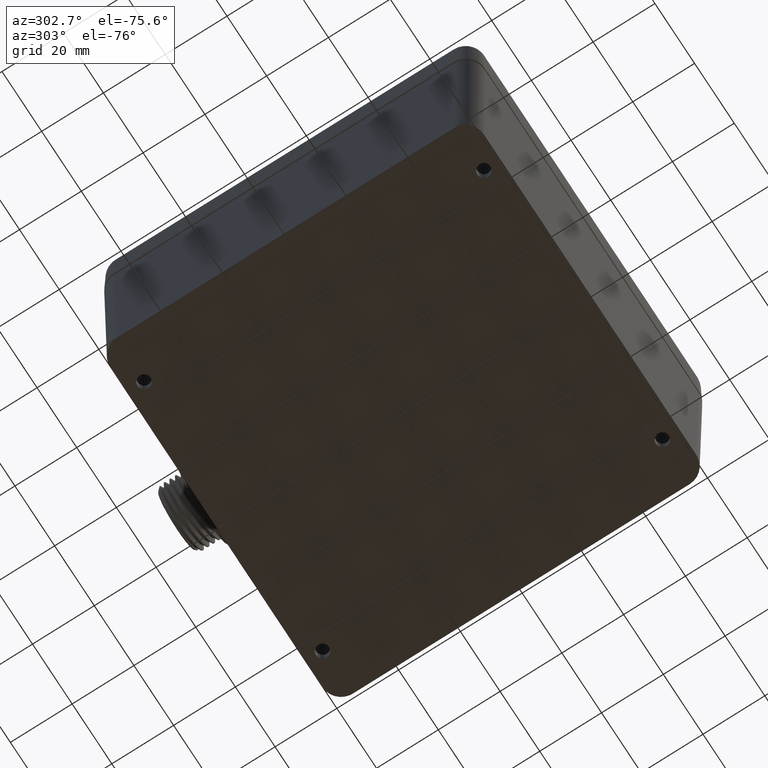
[diagram: clean part render]
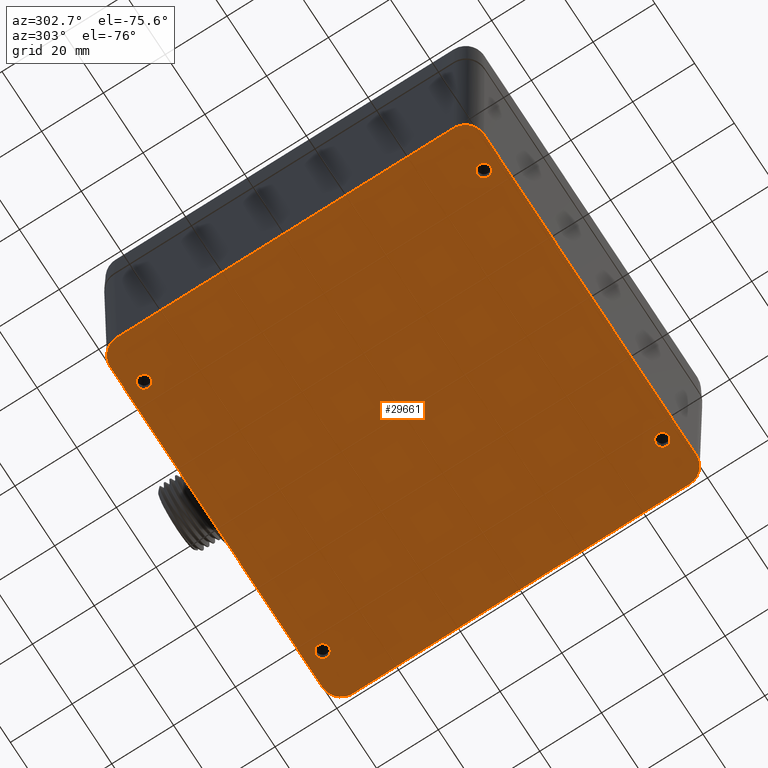
[diagram: same view with one face highlighted and labeled with its STEP entity id]
A machine part, auxiliary view. The second image highlights one B-rep face of the part: STEP entity #29661.
In plain terms, the highlighted planar face has unit normal (0, 0, -1).
Its self-contained STEP definition (entity closure, byte-faithful):
#89 = CARTESIAN_POINT ( 'NONE',  ( 2.244628115040389282, 2.381727401485860263, -2.755905511811025388 ) ) ;
#114 = VERTEX_POINT ( 'NONE', #23620 ) ;
#1186 = CARTESIAN_POINT ( 'NONE',  ( -1.771653543307086576, 2.165354330708661568, -2.755905511811024056 ) ) ;
#1575 = EDGE_CURVE ( 'NONE', #114, #29436, #20281, .T. ) ;
#1839 = CARTESIAN_POINT ( 'NONE',  ( 2.811023622047244430, 2.381889752701787710, -2.755905511811024056 ) ) ;
#1961 = ORIENTED_EDGE ( 'NONE', *, *, #12073, .T. ) ;
#2213 = EDGE_LOOP ( 'NONE', ( #30985, #3242 ) ) ;
#2221 = CARTESIAN_POINT ( 'NONE',  ( 2.106739049942594644, -2.381889744218858240, -2.755905507442043323 ) ) ;
#2564 = CARTESIAN_POINT ( 'NONE',  ( 1.771653543307086576, 2.165354330708661568, -2.755905511811024056 ) ) ;
#2827 = EDGE_CURVE ( 'NONE', #13024, #13173, #5347, .T. ) ;
#3126 = VECTOR ( 'NONE', #15001, 39.37007874015748143 ) ;
#3242 = ORIENTED_EDGE ( 'NONE', *, *, #22719, .T. ) ;
#3288 = FACE_OUTER_BOUND ( 'NONE', #11136, .T. ) ;
#4211 = AXIS2_PLACEMENT_3D ( 'NONE', #19865, #16716, #30051 ) ;
#4554 = CARTESIAN_POINT ( 'NONE',  ( -2.106613251068440995, -2.381889662517161277, -2.755905512564232662 ) ) ;
#4603 = VERTEX_POINT ( 'NONE', #22484 ) ;
#5296 = CARTESIAN_POINT ( 'NONE',  ( 1.771653543307086576, -2.165354330708661568, -2.755905511811024056 ) ) ;
#5318 = AXIS2_PLACEMENT_3D ( 'NONE', #16790, #22036, #14516 ) ;
#5347 =( BOUNDED_CURVE ( )  B_SPLINE_CURVE ( 3, ( #28700, #10462, #10124, #2221 ),
 .UNSPECIFIED., .F., .F. ) 
 B_SPLINE_CURVE_WITH_KNOTS ( ( 4, 4 ),
 ( 2.357396101010214906, 3.925128889959304868 ),
 .UNSPECIFIED. ) 
 CURVE ( )  GEOMETRIC_REPRESENTATION_ITEM ( )  RATIONAL_B_SPLINE_CURVE ( ( 1.000000000000000000, 0.8054593836051719968, 0.8054593836051719968, 1.000000000000000000 ) ) 
 REPRESENTATION_ITEM ( '' )  );
#5377 = DIRECTION ( 'NONE',  ( 1.000000000000000000, 0.000000000000000000, 0.000000000000000000 ) ) ;
#5472 = EDGE_LOOP ( 'NONE', ( #15294, #1961 ) ) ;
#5704 = ORIENTED_EDGE ( 'NONE', *, *, #15645, .T. ) ;
#6787 = DIRECTION ( 'NONE',  ( 0.000000000000000000, 1.000000000000000000, 0.000000000000000000 ) ) ;
#7111 = DIRECTION ( 'NONE',  ( 0.000000000000000000, 0.000000000000000000, 1.000000000000000000 ) ) ;
#7178 = EDGE_CURVE ( 'NONE', #27330, #7643, #7545, .T. ) ;
#7215 = EDGE_LOOP ( 'NONE', ( #24478, #21468 ) ) ;
#7263 = ORIENTED_EDGE ( 'NONE', *, *, #14630, .T. ) ;
#7348 = AXIS2_PLACEMENT_3D ( 'NONE', #27071, #21300, #32158 ) ;
#7409 = CARTESIAN_POINT ( 'NONE',  ( 2.342519685039369914, 2.858267716534342640, -2.755905511811024056 ) ) ;
#7545 = CIRCLE ( 'NONE', #4211, 0.08267716535432079183 ) ;
#7643 = VERTEX_POINT ( 'NONE', #12117 ) ;
#7801 =( BOUNDED_CURVE ( )  B_SPLINE_CURVE ( 3, ( #8501, #89, #29191, #23943 ),
 .UNSPECIFIED., .F., .T. ) 
 B_SPLINE_CURVE_WITH_KNOTS ( ( 4, 4 ),
 ( 5.498988754597079698, 7.066745401790790027 ),
 .UNSPECIFIED. ) 
 CURVE ( )  GEOMETRIC_REPRESENTATION_ITEM ( )  RATIONAL_B_SPLINE_CURVE ( ( 1.000000000000000000, 0.8054537687498010134, 0.8054537687498010134, 1.000000000000000000 ) ) 
 REPRESENTATION_ITEM ( '' )  );
#8074 = CARTESIAN_POINT ( 'NONE',  ( -2.244822846285226881, -2.381709509815444381, -2.755905511811024500 ) ) ;
#8077 = VECTOR ( 'NONE', #28598, 39.37007874015748143 ) ;
#8501 = CARTESIAN_POINT ( 'NONE',  ( 2.106583065192299209, 2.381889698557948964, -2.755905511334393321 ) ) ;
#8621 = AXIS2_PLACEMENT_3D ( 'NONE', #9742, #7111, #17631 ) ;
#9154 = EDGE_CURVE ( 'NONE', #11380, #16100, #34347, .T. ) ;
#9742 = CARTESIAN_POINT ( 'NONE',  ( -1.771653543307086576, -2.165354330708661568, -2.755905511811024056 ) ) ;
#9912 = VERTEX_POINT ( 'NONE', #25845 ) ;
#10124 = CARTESIAN_POINT ( 'NONE',  ( 2.244781343080414882, -2.381636018158066470, -2.755905511811026720 ) ) ;
#10373 = CARTESIAN_POINT ( 'NONE',  ( -2.106613251068440995, -2.381889662517161277, -2.755905512564232662 ) ) ;
#10382 = VECTOR ( 'NONE', #18093, 39.37007874015748143 ) ;
#10462 = CARTESIAN_POINT ( 'NONE',  ( 2.342357325816719182, -2.283995579701763479, -2.755905511811026720 ) ) ;
#10712 = CARTESIAN_POINT ( 'NONE',  ( -2.342494501771100079, -2.283928338815426784, -2.755905511811024500 ) ) ;
#10979 = CARTESIAN_POINT ( 'NONE',  ( -2.106348543166248088, 2.381889758240657518, -2.755905511811024056 ) ) ;
#10987 = VECTOR ( 'NONE', #6787, 39.37007874015748143 ) ;
#11136 = EDGE_LOOP ( 'NONE', ( #19774, #7263, #11683, #24211, #5704, #22873, #25834, #12494 ) ) ;
#11380 = VERTEX_POINT ( 'NONE', #34412 ) ;
#11683 = ORIENTED_EDGE ( 'NONE', *, *, #30482, .T. ) ;
#11754 = CARTESIAN_POINT ( 'NONE',  ( 2.106739049942594644, -2.381889744218858240, -2.755905507442043323 ) ) ;
#11863 = EDGE_CURVE ( 'NONE', #12160, #114, #29509, .T. ) ;
#12073 = EDGE_CURVE ( 'NONE', #12748, #21277, #13226, .T. ) ;
#12117 = CARTESIAN_POINT ( 'NONE',  ( -1.688976377952756014, 2.165354330708661568, -2.755905511811024056 ) ) ;
#12160 = VERTEX_POINT ( 'NONE', #4554 ) ;
#12494 = ORIENTED_EDGE ( 'NONE', *, *, #20402, .T. ) ;
#12598 = CIRCLE ( 'NONE', #18748, 0.08267716535432079183 ) ;
#12688 = LINE ( 'NONE', #7409, #10382 ) ;
#12708 = EDGE_CURVE ( 'NONE', #21277, #12748, #15897, .T. ) ;
#12726 = CARTESIAN_POINT ( 'NONE',  ( -1.854330708661417582, -2.165354330708661568, -2.755905511811024056 ) ) ;
#12748 = VERTEX_POINT ( 'NONE', #12726 ) ;
#13024 = VERTEX_POINT ( 'NONE', #24800 ) ;
#13173 = VERTEX_POINT ( 'NONE', #11754 ) ;
#13226 = CIRCLE ( 'NONE', #31149, 0.08267716535433225489 ) ;
#14006 = EDGE_CURVE ( 'NONE', #28231, #18650, #18162, .T. ) ;
#14345 = FACE_BOUND ( 'NONE', #7215, .T. ) ;
#14407 = EDGE_CURVE ( 'NONE', #16100, #11380, #32201, .T. ) ;
#14516 = DIRECTION ( 'NONE',  ( 0.000000000000000000, -1.000000000000000000, 0.000000000000000000 ) ) ;
#14630 = EDGE_CURVE ( 'NONE', #9912, #4603, #7801, .T. ) ;
#14748 = DIRECTION ( 'NONE',  ( 1.000000000000000000, 0.000000000000000000, 0.000000000000000000 ) ) ;
#15001 = DIRECTION ( 'NONE',  ( 1.000000000000000000, 0.000000000000000000, 0.000000000000000000 ) ) ;
#15294 = ORIENTED_EDGE ( 'NONE', *, *, #12708, .T. ) ;
#15645 = EDGE_CURVE ( 'NONE', #13173, #12160, #17888, .T. ) ;
#15739 = CARTESIAN_POINT ( 'NONE',  ( 1.854330708661417582, 2.165354330708661568, -2.755905511811024056 ) ) ;
#15897 = CIRCLE ( 'NONE', #8621, 0.08267716535433225489 ) ;
#16100 = VERTEX_POINT ( 'NONE', #15739 ) ;
#16282 = EDGE_CURVE ( 'NONE', #7643, #27330, #12598, .T. ) ;
#16433 = DIRECTION ( 'NONE',  ( 0.000000000000000000, 0.000000000000000000, 1.000000000000000000 ) ) ;
#16716 = DIRECTION ( 'NONE',  ( 0.000000000000000000, 0.000000000000000000, 1.000000000000000000 ) ) ;
#16790 = CARTESIAN_POINT ( 'NONE',  ( 2.811023622047244430, 2.858267716534342640, -2.755905511811024056 ) ) ;
#16807 = CARTESIAN_POINT ( 'NONE',  ( 1.688976377952756014, -2.165354330708661568, -2.755905511811024056 ) ) ;
#17102 = AXIS2_PLACEMENT_3D ( 'NONE', #26818, #27714, #19282 ) ;
#17133 = FACE_BOUND ( 'NONE', #27389, .T. ) ;
#17365 = DIRECTION ( 'NONE',  ( 0.000000000000000000, 0.000000000000000000, 1.000000000000000000 ) ) ;
#17624 = LINE ( 'NONE', #1839, #3126 ) ;
#17631 = DIRECTION ( 'NONE',  ( 1.000000000000000000, 0.000000000000000000, 0.000000000000000000 ) ) ;
#17888 = LINE ( 'NONE', #20186, #8077 ) ;
#18093 = DIRECTION ( 'NONE',  ( 0.000000000000000000, -1.000000000000000000, 0.000000000000000000 ) ) ;
#18162 = CIRCLE ( 'NONE', #28821, 0.08267716535433854153 ) ;
#18650 = VERTEX_POINT ( 'NONE', #16807 ) ;
#18695 = CARTESIAN_POINT ( 'NONE',  ( -2.342339431305239472, 2.284192924037573569, -2.755905511811026720 ) ) ;
#18748 = AXIS2_PLACEMENT_3D ( 'NONE', #1186, #16433, #27663 ) ;
#18750 = CARTESIAN_POINT ( 'NONE',  ( -1.688976377952756014, -2.165354330708661568, -2.755905511811024056 ) ) ;
#18788 = VERTEX_POINT ( 'NONE', #10979 ) ;
#18801 = DIRECTION ( 'NONE',  ( 1.000000000000000000, 0.000000000000000000, 0.000000000000000000 ) ) ;
#19282 = DIRECTION ( 'NONE',  ( 1.000000000000000000, 0.000000000000000000, 0.000000000000000000 ) ) ;
#19774 = ORIENTED_EDGE ( 'NONE', *, *, #25962, .T. ) ;
#19865 = CARTESIAN_POINT ( 'NONE',  ( -1.771653543307086576, 2.165354330708661568, -2.755905511811024056 ) ) ;
#20186 = CARTESIAN_POINT ( 'NONE',  ( 2.811023622047244430, -2.381889763779527769, -2.755905511811024056 ) ) ;
#20281 = LINE ( 'NONE', #23253, #10987 ) ;
#20402 = EDGE_CURVE ( 'NONE', #29436, #18788, #29291, .T. ) ;
#20912 = AXIS2_PLACEMENT_3D ( 'NONE', #2564, #23622, #5377 ) ;
#21232 = CARTESIAN_POINT ( 'NONE',  ( -2.342519682674720549, -2.145718620229240425, -2.755905511811024056 ) ) ;
#21277 = VERTEX_POINT ( 'NONE', #18750 ) ;
#21300 = DIRECTION ( 'NONE',  ( 0.000000000000000000, 0.000000000000000000, 1.000000000000000000 ) ) ;
#21468 = ORIENTED_EDGE ( 'NONE', *, *, #7178, .T. ) ;
#22036 = DIRECTION ( 'NONE',  ( 0.000000000000000000, 0.000000000000000000, -1.000000000000000000 ) ) ;
#22484 = CARTESIAN_POINT ( 'NONE',  ( 2.342519491268208576, 2.146103492394275669, -2.755905510394075275 ) ) ;
#22575 = FACE_BOUND ( 'NONE', #5472, .T. ) ;
#22719 = EDGE_CURVE ( 'NONE', #18650, #28231, #26390, .T. ) ;
#22873 = ORIENTED_EDGE ( 'NONE', *, *, #11863, .T. ) ;
#23253 = CARTESIAN_POINT ( 'NONE',  ( -2.342519680310071184, 2.858267716534342640, -2.755905511811024056 ) ) ;
#23620 = CARTESIAN_POINT ( 'NONE',  ( -2.342519682674720549, -2.145718620229240425, -2.755905511811024056 ) ) ;
#23622 = DIRECTION ( 'NONE',  ( 0.000000000000000000, 0.000000000000000000, 1.000000000000000000 ) ) ;
#23943 = CARTESIAN_POINT ( 'NONE',  ( 2.342519491268208576, 2.146103492394275669, -2.755905510394075275 ) ) ;
#24211 = ORIENTED_EDGE ( 'NONE', *, *, #2827, .T. ) ;
#24478 = ORIENTED_EDGE ( 'NONE', *, *, #16282, .T. ) ;
#24800 = CARTESIAN_POINT ( 'NONE',  ( 2.342519619817783560, -2.145953143933204910, -2.755905511334393321 ) ) ;
#25440 = CARTESIAN_POINT ( 'NONE',  ( -1.771653543307086576, -2.165354330708661568, -2.755905511811024056 ) ) ;
#25834 = ORIENTED_EDGE ( 'NONE', *, *, #1575, .T. ) ;
#25845 = CARTESIAN_POINT ( 'NONE',  ( 2.106583065192299209, 2.381889698557948964, -2.755905511334393321 ) ) ;
#25962 = EDGE_CURVE ( 'NONE', #18788, #9912, #17624, .T. ) ;
#26303 = ORIENTED_EDGE ( 'NONE', *, *, #14407, .T. ) ;
#26390 = CIRCLE ( 'NONE', #7348, 0.08267716535433854153 ) ;
#26587 = CARTESIAN_POINT ( 'NONE',  ( -2.342519583361236002, 2.145983329417243901, -2.755905512325862450 ) ) ;
#26690 = DIRECTION ( 'NONE',  ( 0.000000000000000000, 0.000000000000000000, 1.000000000000000000 ) ) ;
#26818 = CARTESIAN_POINT ( 'NONE',  ( 1.771653543307086576, 2.165354330708661568, -2.755905511811024056 ) ) ;
#26939 = CARTESIAN_POINT ( 'NONE',  ( -1.854330708661417582, 2.165354330708661568, -2.755905511811024056 ) ) ;
#27071 = CARTESIAN_POINT ( 'NONE',  ( 1.771653543307086576, -2.165354330708661568, -2.755905511811024056 ) ) ;
#27307 = FACE_BOUND ( 'NONE', #2213, .T. ) ;
#27330 = VERTEX_POINT ( 'NONE', #26939 ) ;
#27389 = EDGE_LOOP ( 'NONE', ( #26303, #28794 ) ) ;
#27663 = DIRECTION ( 'NONE',  ( 1.000000000000000000, 0.000000000000000000, 0.000000000000000000 ) ) ;
#27714 = DIRECTION ( 'NONE',  ( 0.000000000000000000, 0.000000000000000000, 1.000000000000000000 ) ) ;
#27839 = PLANE ( 'NONE',  #5318 ) ;
#28231 = VERTEX_POINT ( 'NONE', #34146 ) ;
#28598 = DIRECTION ( 'NONE',  ( -1.000000000000000000, -2.193026644036815008E-16, 0.000000000000000000 ) ) ;
#28700 = CARTESIAN_POINT ( 'NONE',  ( 2.342519619817783560, -2.145953143933204910, -2.755905511334393321 ) ) ;
#28794 = ORIENTED_EDGE ( 'NONE', *, *, #9154, .T. ) ;
#28821 = AXIS2_PLACEMENT_3D ( 'NONE', #5296, #26690, #18801 ) ;
#29191 = CARTESIAN_POINT ( 'NONE',  ( 2.342269238405833676, 2.284148406132874509, -2.755905511811025388 ) ) ;
#29291 =( BOUNDED_CURVE ( )  B_SPLINE_CURVE ( 3, ( #26587, #18695, #32369, #32714 ),
 .UNSPECIFIED., .F., .F. ) 
 B_SPLINE_CURVE_WITH_KNOTS ( ( 4, 4 ),
 ( 2.357523882870025123, 3.926781989454739996 ),
 .UNSPECIFIED. ) 
 CURVE ( )  GEOMETRIC_REPRESENTATION_ITEM ( )  RATIONAL_B_SPLINE_CURVE ( ( 1.000000000000000000, 0.8051002766441119896, 0.8051002766441119896, 1.000000000000000000 ) ) 
 REPRESENTATION_ITEM ( '' )  );
#29436 = VERTEX_POINT ( 'NONE', #31002 ) ;
#29509 =( BOUNDED_CURVE ( )  B_SPLINE_CURVE ( 3, ( #10373, #8074, #10712, #21232 ),
 .UNSPECIFIED., .F., .T. ) 
 B_SPLINE_CURVE_WITH_KNOTS ( ( 4, 4 ),
 ( 5.499116538114230401, 7.068374650146710181 ),
 .UNSPECIFIED. ) 
 CURVE ( )  GEOMETRIC_REPRESENTATION_ITEM ( )  RATIONAL_B_SPLINE_CURVE ( ( 1.000000000000000000, 0.8051002753610480012, 0.8051002753610480012, 1.000000000000000000 ) ) 
 REPRESENTATION_ITEM ( '' )  );
#29661 = ADVANCED_FACE ( 'NONE', ( #14345, #22575, #17133, #27307, #3288 ), #27839, .T. ) ;
#30051 = DIRECTION ( 'NONE',  ( 1.000000000000000000, 0.000000000000000000, 0.000000000000000000 ) ) ;
#30482 = EDGE_CURVE ( 'NONE', #4603, #13024, #12688, .T. ) ;
#30985 = ORIENTED_EDGE ( 'NONE', *, *, #14006, .T. ) ;
#31002 = CARTESIAN_POINT ( 'NONE',  ( -2.342519583361236002, 2.145983329417243901, -2.755905512325862450 ) ) ;
#31149 = AXIS2_PLACEMENT_3D ( 'NONE', #25440, #17365, #14748 ) ;
#32158 = DIRECTION ( 'NONE',  ( 1.000000000000000000, 0.000000000000000000, 0.000000000000000000 ) ) ;
#32201 = CIRCLE ( 'NONE', #17102, 0.08267716535432488578 ) ;
#32369 = CARTESIAN_POINT ( 'NONE',  ( -2.244558261155473300, 2.381864579529480164, -2.755905511811026720 ) ) ;
#32714 = CARTESIAN_POINT ( 'NONE',  ( -2.106348543166248088, 2.381889758240657518, -2.755905511811024056 ) ) ;
#34146 = CARTESIAN_POINT ( 'NONE',  ( 1.854330708661417582, -2.165354330708661568, -2.755905511811024056 ) ) ;
#34347 = CIRCLE ( 'NONE', #20912, 0.08267716535432488578 ) ;
#34412 = CARTESIAN_POINT ( 'NONE',  ( 1.688976377952756014, 2.165354330708661568, -2.755905511811024056 ) ) ;